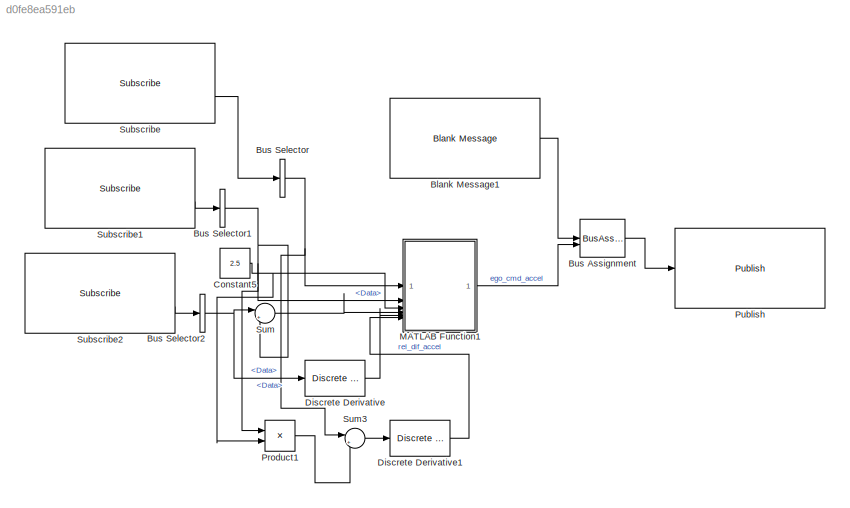
MODEL slx_d0fe8ea591eb
KIND model
CONFIG AbsTol = auto
CONFIG EnableMultiTasking = off
CONFIG FixedStep = auto
CONFIG MaxStep = auto
CONFIG MinStep = auto
CONFIG RelTol = 1e-3
CONFIG SampleTimeConstraint = Unconstrained
CONFIG SolverName = FixedStepAuto
CONFIG StartTime = 0.0
CONFIG StopTime = 10.0
BLOCK [Reference] Blank Message1  REF=robotlib/Blank Message
  SourceBlock = robotlib/Blank Message
  SourceType = ROS Blank Message
BLOCK [BusAssignment] Bus Assignment
  AssignedSignals = Data
BLOCK [BusSelector] Bus Selector
  OutputSignals = Data
BLOCK [BusSelector] Bus Selector1
  OutputSignals = Data
BLOCK [BusSelector] Bus Selector2
  OutputSignals = Data
BLOCK [Constant] Constant5
  Value = 2.5
BLOCK [Reference] Discrete Derivative  REF=simulink/Discrete/Discrete Derivative
  SourceBlock = simulink/Discrete/Discrete Derivative
  SourceType = Discrete Derivative
BLOCK [Reference] Discrete Derivative1  REF=simulink/Discrete/Discrete Derivative
  SourceBlock = simulink/Discrete/Discrete Derivative
  SourceType = Discrete Derivative
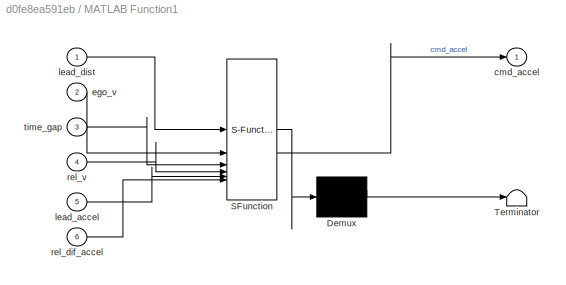
BLOCK [SubSystem] MATLAB Function1
  ErrorFcn = Stateflow.Translate.translate
  PermitHierarchicalResolution = ExplicitOnly
  SFBlockType = MATLAB Function
  TreatAsAtomicUnit = on
BLOCK [Demux] MATLAB Function1/ Demux 
  Outputs = 1
BLOCK [S-Function] MATLAB Function1/ SFunction 
  EnableBusSupport = on
  FunctionName = sf_sfun
  PortCounts = [6 2]
  SFcnIsStateOwnerBlock = off
  SFunctionDeploymentMode = off
  Tag = Stateflow S-Function 1
BLOCK [Terminator] MATLAB Function1/ Terminator 
BLOCK [Outport] MATLAB Function1/cmd_accel
BLOCK [Inport] MATLAB Function1/ego_v
  Port = 2
BLOCK [Inport] MATLAB Function1/lead_accel
  Port = 5
BLOCK [Inport] MATLAB Function1/lead_dist
BLOCK [Inport] MATLAB Function1/rel_dif_accel
  Port = 6
BLOCK [Inport] MATLAB Function1/rel_v
  Port = 4
BLOCK [Inport] MATLAB Function1/time_gap
  Port = 3
BLOCK [Product] Product1
BLOCK [Reference] Publish  REF=robotlib/Publish
  SourceBlock = robotlib/Publish
  SourceType = ROS Publish
BLOCK [Reference] Subscribe  REF=robotlib/Subscribe
  SourceBlock = robotlib/Subscribe
  SourceType = ROS Subscribe
BLOCK [Reference] Subscribe1  REF=robotlib/Subscribe
  SourceBlock = robotlib/Subscribe
  SourceType = ROS Subscribe
BLOCK [Reference] Subscribe2  REF=robotlib/Subscribe
  SourceBlock = robotlib/Subscribe
  SourceType = ROS Subscribe
BLOCK [Sum] Sum
  Inputs = |+-
BLOCK [Sum] Sum3
  Inputs = |+-
LINE Blank Message1:1 -> Bus Assignment:1
LINE Bus Assignment:1 -> Publish:1
NET Bus Selector1:1 -> MATLAB Function1:2, Product1:1, Sum:2
NET Bus Selector2:1 -> Discrete Derivative:1, Sum:1
NET Bus Selector:1 -> MATLAB Function1:1, Sum3:1
NET Constant5:1 -> MATLAB Function1:3, Product1:2
LINE Discrete Derivative1:1 -> MATLAB Function1:6
LINE Discrete Derivative:1 -> MATLAB Function1:5
LINE MATLAB Function1:1 -> Bus Assignment:2
LINE Product1:1 -> Sum3:2
LINE Subscribe1:2 -> Bus Selector1:1
LINE Subscribe2:2 -> Bus Selector2:1
LINE Subscribe:2 -> Bus Selector:1
LINE Sum3:1 -> Discrete Derivative1:1
LINE Sum:1 -> MATLAB Function1:4
note: NET lines group one-source signal fan-out (src -> all destinations, sorted); 1:1 wires keep LINE
CHART MATLAB Function1 states=1 transitions=1
  STATE_LABEL 'eML_blk_kernel()'
  STATE_LABEL 'SCRIPT:\nfunction cmd_accel = controller(lead_dist, ego_v, time_gap, rel_v, lead_accel, rel_dif_accel)\n\nforce = 0.4\n\nalpha = 0.4\nbeta = 1\ngamma = 0.2\ndelta = 0.1\n\ncmd_accel = alpha * (-ego_v * time_gap + lead_dist)\ncmd_accel = cmd_accel + beta * lead_accel\ncmd_accel = cmd_accel + gamma * rel_dif_accel\n\ncmd_accel = cmd_accel * force\nif cmd_accel > 1.5\n        cmd_accel = 1.5;\nelseif cmd_accel < -3 \n...<+29ch>'
CHART  states=0 transitions=0
